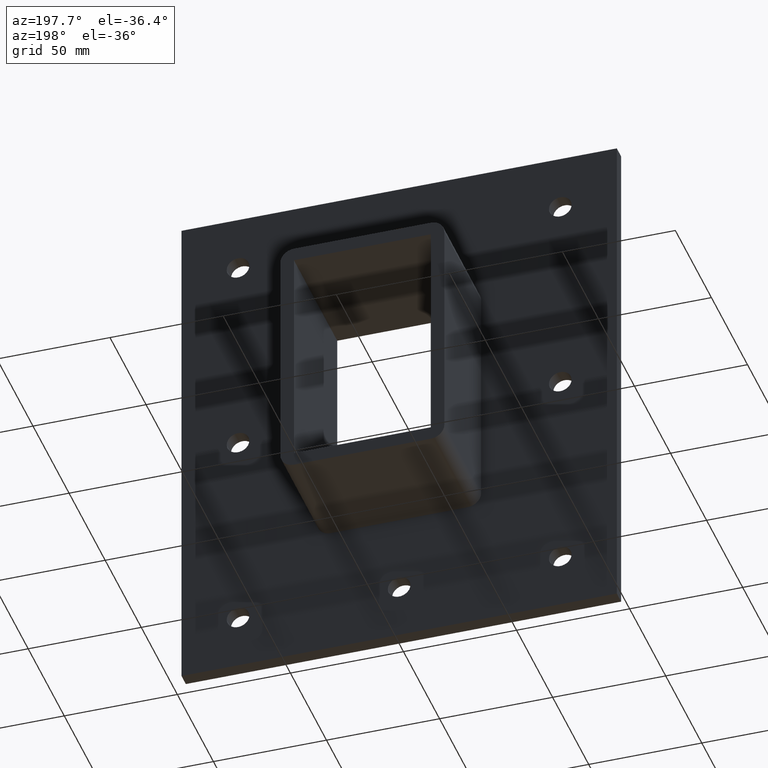
[diagram: clean part render]
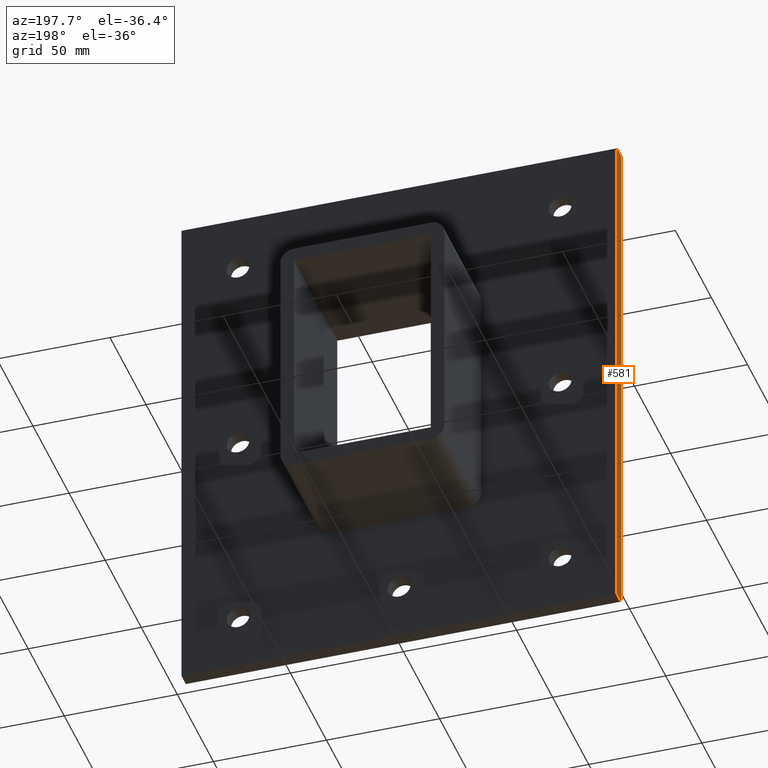
[diagram: same view with one face highlighted and labeled with its STEP entity id]
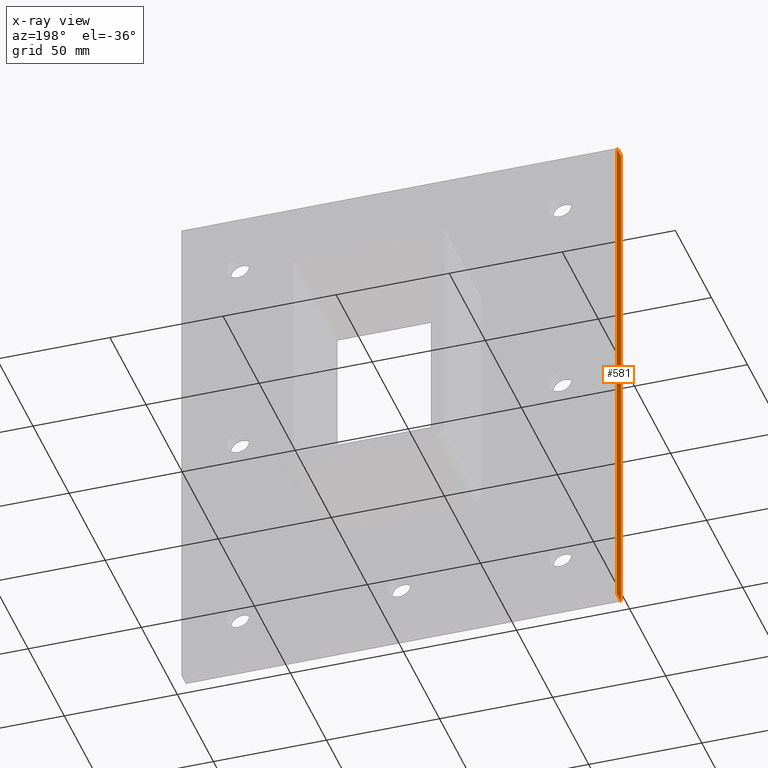
[diagram: x-ray of the same camera — body ghosted, the highlighted face saturated]
A machine part, auxiliary view. The second image highlights one B-rep face of the part: STEP entity #581.
The next image is the same camera in x-ray: the body ghosted, the highlighted face saturated — about 0% of this face is hidden behind the body in this view.
In plain terms, the highlighted planar face has unit normal (-1, 0, 0).
Its self-contained STEP definition (entity closure, byte-faithful):
#297=CARTESIAN_POINT('',(-96.25,6.000000000000001,116.5));
#298=VERTEX_POINT('',#297);
#315=CARTESIAN_POINT('',(-96.25,6.000000000000001,-116.5));
#316=VERTEX_POINT('',#315);
#323=CARTESIAN_POINT('',(-96.25,6.000000000000001,-116.5));
#324=DIRECTION('',(0.0,0.0,1.0));
#325=VECTOR('',#324,233.0);
#326=LINE('',#323,#325);
#327=EDGE_CURVE('',#316,#298,#326,.T.);
#431=CARTESIAN_POINT('',(-96.25,0.0,116.5));
#432=VERTEX_POINT('',#431);
#441=CARTESIAN_POINT('',(-96.25,0.0,-116.5));
#442=VERTEX_POINT('',#441);
#443=CARTESIAN_POINT('',(-96.25,0.0,-116.5));
#444=DIRECTION('',(0.0,0.0,1.0));
#445=VECTOR('',#444,233.0);
#446=LINE('',#443,#445);
#447=EDGE_CURVE('',#442,#432,#446,.T.);
#560=CARTESIAN_POINT('',(-96.25,0.0,-116.5));
#561=DIRECTION('',(-1.0,0.0,0.0));
#562=DIRECTION('',(0.0,0.0,1.0));
#563=AXIS2_PLACEMENT_3D('',#560,#561,#562);
#564=PLANE('',#563);
#565=ORIENTED_EDGE('',*,*,#447,.T.);
#566=CARTESIAN_POINT('',(-96.25,0.0,116.5));
#567=DIRECTION('',(0.0,1.0,0.0));
#568=VECTOR('',#567,6.000000000000001);
#569=LINE('',#566,#568);
#570=EDGE_CURVE('',#432,#298,#569,.T.);
#571=ORIENTED_EDGE('',*,*,#570,.T.);
#572=ORIENTED_EDGE('',*,*,#327,.F.);
#573=CARTESIAN_POINT('',(-96.25,0.0,-116.5));
#574=DIRECTION('',(0.0,1.0,0.0));
#575=VECTOR('',#574,6.000000000000001);
#576=LINE('',#573,#575);
#577=EDGE_CURVE('',#442,#316,#576,.T.);
#578=ORIENTED_EDGE('',*,*,#577,.F.);
#579=EDGE_LOOP('',(#565,#571,#572,#578));
#580=FACE_OUTER_BOUND('',#579,.T.);
#581=ADVANCED_FACE('',(#580),#564,.T.);